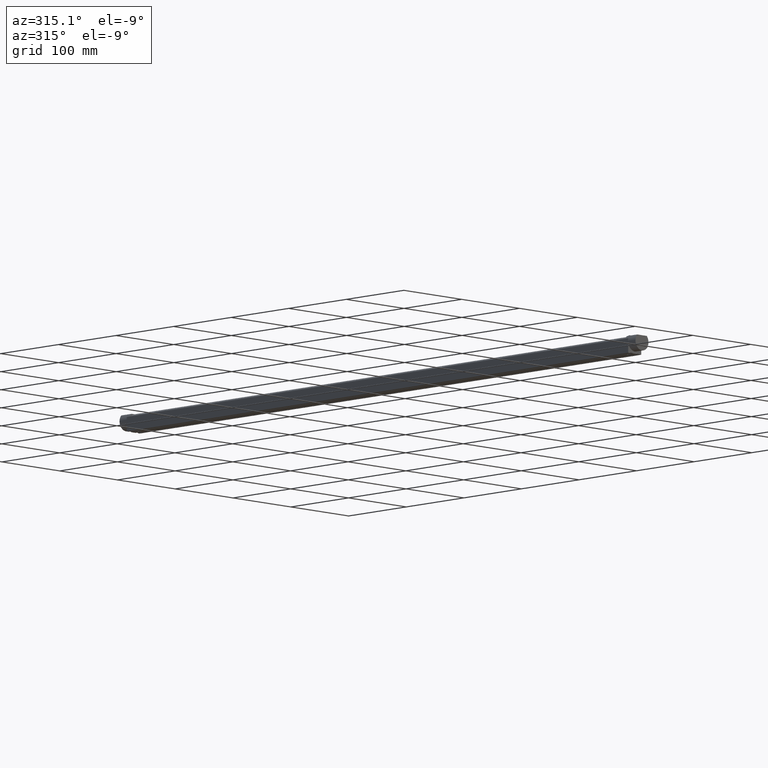
[diagram: clean part render]
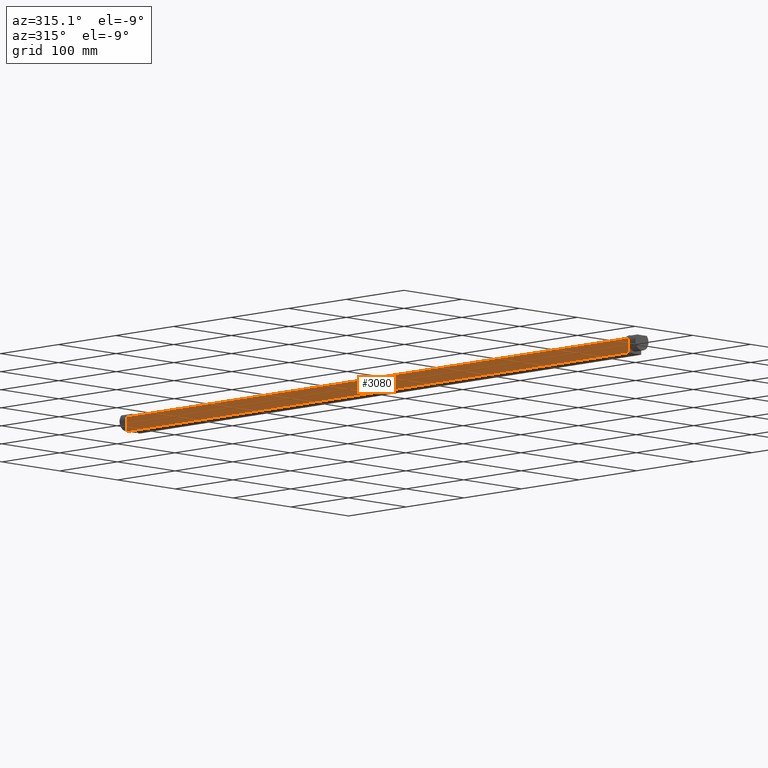
[diagram: same view with one face highlighted and labeled with its STEP entity id]
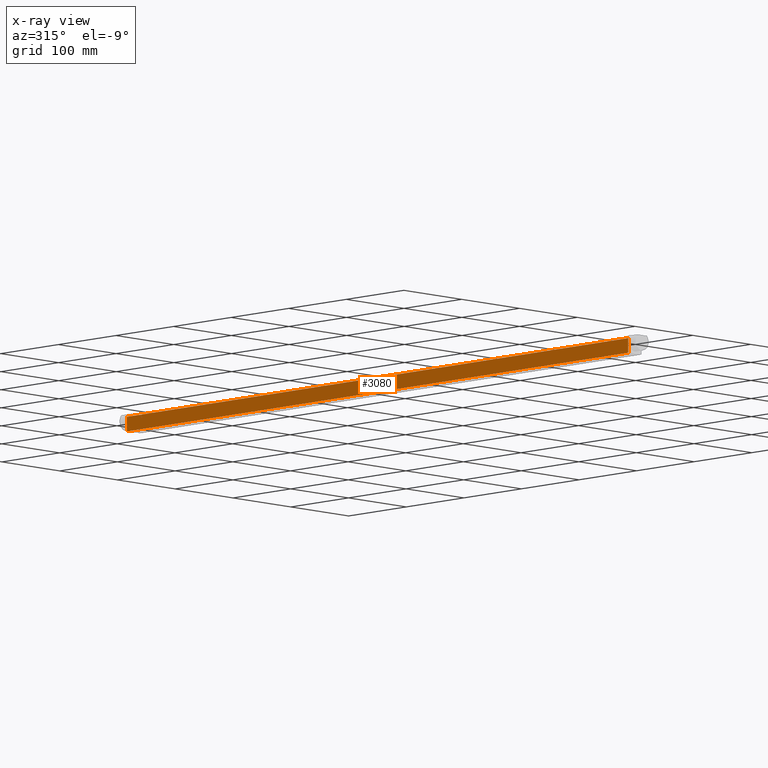
[diagram: x-ray of the same camera — body ghosted, the highlighted face saturated]
A machine part, auxiliary view. The second image highlights one B-rep face of the part: STEP entity #3080.
The next image is the same camera in x-ray: the body ghosted, the highlighted face saturated — about 0% of this face is hidden behind the body in this view.
In plain terms, the highlighted planar face has unit normal (1, 0, 0).
Its self-contained STEP definition (entity closure, byte-faithful):
#850=CARTESIAN_POINT('',(12.5,-11.25,0.));
#860=DIRECTION('',(0.,0.,1.));
#870=VECTOR('',#860,1.);
#880=LINE('',#850,#870);
#890=CARTESIAN_POINT('',(12.5,-11.25,-22.));
#900=VERTEX_POINT('',#890);
#910=CARTESIAN_POINT('',(12.5,-11.2492250572074,-18.));
#920=VERTEX_POINT('',#910);
#930=EDGE_CURVE('',#900,#920,#880,.T.);
#2700=CARTESIAN_POINT('',(106.55,-11.25,-4.50000000000001));
#2710=DIRECTION('',(0.,1.,0.));
#2720=DIRECTION('',(0.,0.,1.));
#2730=AXIS2_PLACEMENT_3D('',#2700,#2710,#2720);
#2740=PLANE('',#2730);
#2750=ORIENTED_EDGE('',*,*,#930,.F.);
#2760=CARTESIAN_POINT('',(12.5,-11.25,-4.));
#2770=VERTEX_POINT('',#2760);
#2780=EDGE_CURVE('',#920,#2770,#880,.T.);
#2790=ORIENTED_EDGE('',*,*,#2780,.F.);
#2800=CARTESIAN_POINT('',(0.,-11.25,-4.));
#2810=DIRECTION('',(-1.,0.,0.));
#2820=VECTOR('',#2810,1.);
#2830=LINE('',#2800,#2820);
#2840=CARTESIAN_POINT('',(883.5,-11.25,-4.));
#2850=VERTEX_POINT('',#2840);
#2860=EDGE_CURVE('',#2850,#2770,#2830,.T.);
#2870=ORIENTED_EDGE('',*,*,#2860,.T.);
#2880=CARTESIAN_POINT('',(883.5,-11.25,0.));
#2890=DIRECTION('',(0.,0.,1.));
#2900=VECTOR('',#2890,1.);
#2910=LINE('',#2880,#2900);
#2920=CARTESIAN_POINT('',(883.5,-11.2492250572074,-18.));
#2930=VERTEX_POINT('',#2920);
#2940=EDGE_CURVE('',#2930,#2850,#2910,.T.);
#2950=ORIENTED_EDGE('',*,*,#2940,.T.);
#2960=CARTESIAN_POINT('',(883.5,-11.25,-22.));
#2970=VERTEX_POINT('',#2960);
#2980=EDGE_CURVE('',#2970,#2930,#2910,.T.);
#2990=ORIENTED_EDGE('',*,*,#2980,.T.);
#3000=CARTESIAN_POINT('',(0.,-11.25,-22.));
#3010=DIRECTION('',(-1.,0.,0.));
#3020=VECTOR('',#3010,1.);
#3030=LINE('',#3000,#3020);
#3040=EDGE_CURVE('',#2970,#900,#3030,.T.);
#3050=ORIENTED_EDGE('',*,*,#3040,.F.);
#3060=EDGE_LOOP('',(#3050,#2990,#2950,#2870,#2790,#2750));
#3070=FACE_OUTER_BOUND('',#3060,.T.);
#3080=ADVANCED_FACE('',(#3070),#2740,.F.);